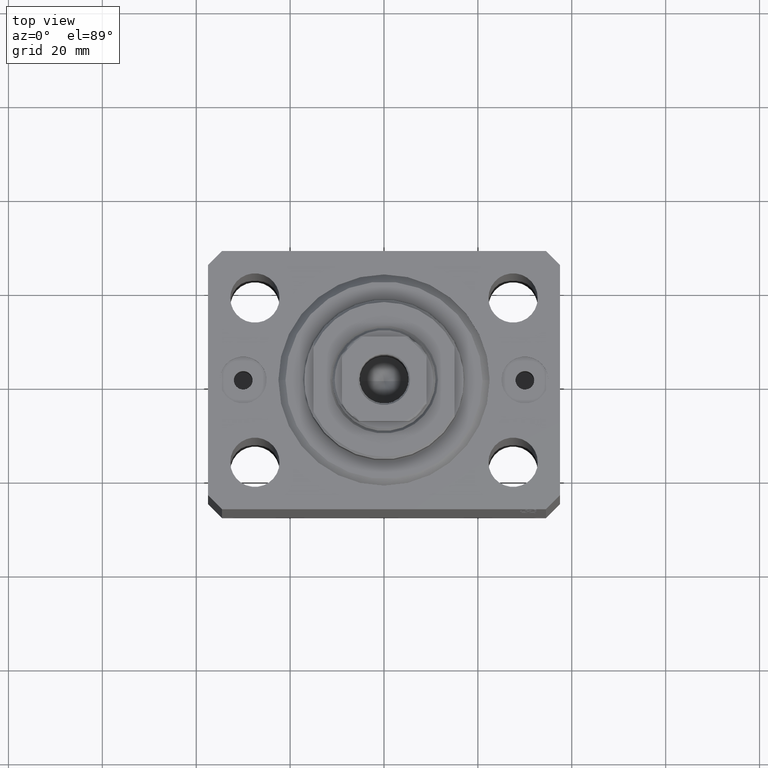
[diagram: clean part render]
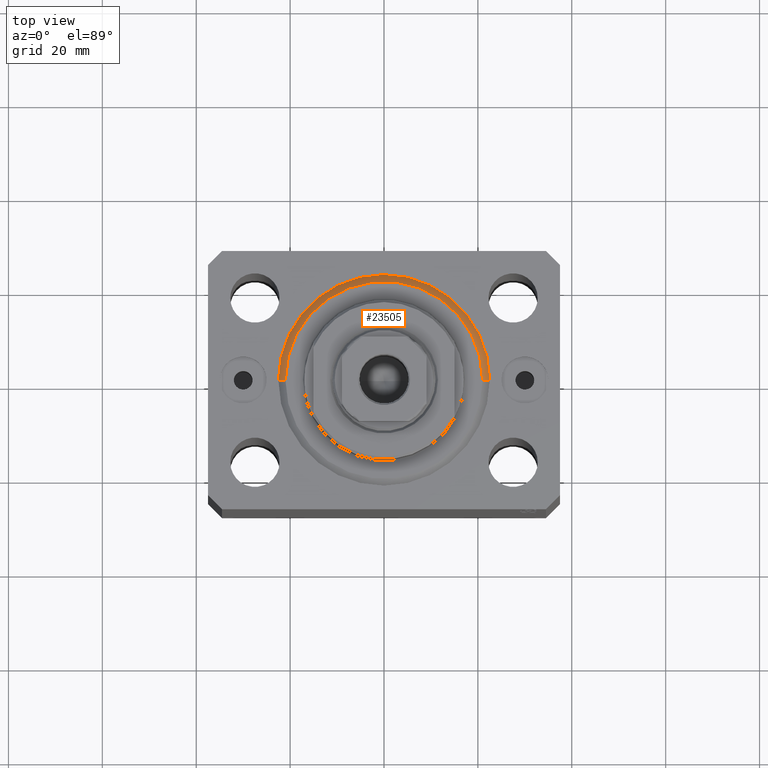
[diagram: same view with one face highlighted and labeled with its STEP entity id]
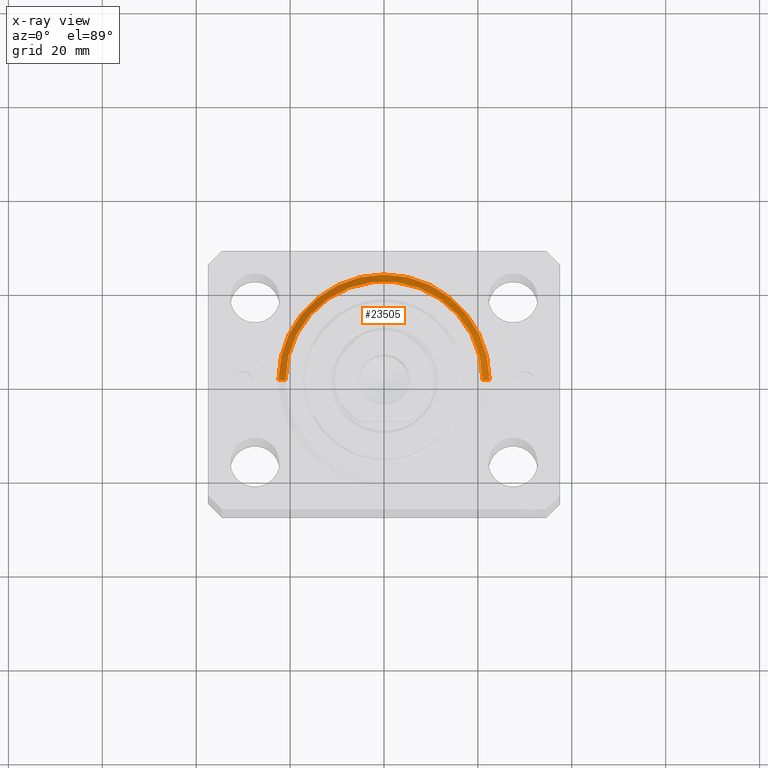
[diagram: x-ray of the same camera — body ghosted, the highlighted face saturated]
A machine part, top view. The second image highlights one B-rep face of the part: STEP entity #23505.
The next image is the same camera in x-ray: the body ghosted, the highlighted face saturated — about 0% of this face is hidden behind the body in this view.
In plain terms, the highlighted conical surface has half-angle 45 deg.
Its self-contained STEP definition (entity closure, byte-faithful):
#425 = CARTESIAN_POINT ( 'NONE',  ( -22.50000000000000355, 2.755455298081545172E-15, 1.500000000000001332 ) ) ;
#1214 = CONICAL_SURFACE ( 'NONE', #32076, 22.50000000000000355, 0.7853981633974517207 ) ;
#1326 = DIRECTION ( 'NONE',  ( 1.000000000000000000, 0.000000000000000000, 0.000000000000000000 ) ) ;
#2121 = EDGE_LOOP ( 'NONE', ( #8008, #28633, #29844, #9351 ) ) ;
#2339 = DIRECTION ( 'NONE',  ( -0.000000000000000000, -0.000000000000000000, -1.000000000000000000 ) ) ;
#3507 = VECTOR ( 'NONE', #17735, 1000.000000000000114 ) ;
#5348 = CARTESIAN_POINT ( 'NONE',  ( 0.000000000000000000, 0.000000000000000000, 1.500000000000001332 ) ) ;
#8008 = ORIENTED_EDGE ( 'NONE', *, *, #39689, .F. ) ;
#8509 = DIRECTION ( 'NONE',  ( -0.000000000000000000, -0.000000000000000000, 1.000000000000000000 ) ) ;
#8584 = VERTEX_POINT ( 'NONE', #29339 ) ;
#9351 = ORIENTED_EDGE ( 'NONE', *, *, #29347, .F. ) ;
#10325 = CARTESIAN_POINT ( 'NONE',  ( 22.50000000000000355, 0.000000000000000000, 1.500000000000001332 ) ) ;
#10483 = VERTEX_POINT ( 'NONE', #43033 ) ;
#11195 = VERTEX_POINT ( 'NONE', #37497 ) ;
#12649 = VECTOR ( 'NONE', #19413, 1000.000000000000114 ) ;
#14141 = LINE ( 'NONE', #10325, #3507 ) ;
#14824 = AXIS2_PLACEMENT_3D ( 'NONE', #32914, #2339, #18523 ) ;
#15397 = CARTESIAN_POINT ( 'NONE',  ( 0.000000000000000000, 0.000000000000000000, 1.500000000000001332 ) ) ;
#17735 = DIRECTION ( 'NONE',  ( 0.7071067811865500152, 0.000000000000000000, 0.7071067811865451302 ) ) ;
#18523 = DIRECTION ( 'NONE',  ( 1.000000000000000000, 0.000000000000000000, 0.000000000000000000 ) ) ;
#19413 = DIRECTION ( 'NONE',  ( -0.7071067811865500152, 8.659560562354963673E-17, 0.7071067811865451302 ) ) ;
#20473 = CIRCLE ( 'NONE', #34816, 22.50000000000000355 ) ;
#21767 = FACE_OUTER_BOUND ( 'NONE', #2121, .T. ) ;
#23505 = ADVANCED_FACE ( 'NONE', ( #21767 ), #1214, .T. ) ;
#28633 = ORIENTED_EDGE ( 'NONE', *, *, #38862, .T. ) ;
#29339 = CARTESIAN_POINT ( 'NONE',  ( 22.50000000000000355, 2.755455298081545172E-15, 1.500000000000001332 ) ) ;
#29347 = EDGE_CURVE ( 'NONE', #40514, #8584, #14141, .T. ) ;
#29844 = ORIENTED_EDGE ( 'NONE', *, *, #36118, .F. ) ;
#32076 = AXIS2_PLACEMENT_3D ( 'NONE', #5348, #8509, #1326 ) ;
#32914 = CARTESIAN_POINT ( 'NONE',  ( 0.000000000000000000, 0.000000000000000000, 0.000000000000000000 ) ) ;
#34816 = AXIS2_PLACEMENT_3D ( 'NONE', #15397, #40505, #37143 ) ;
#35177 = CARTESIAN_POINT ( 'NONE',  ( 20.99999999999998934, 0.000000000000000000, 0.000000000000000000 ) ) ;
#36118 = EDGE_CURVE ( 'NONE', #8584, #10483, #20473, .T. ) ;
#37143 = DIRECTION ( 'NONE',  ( 1.000000000000000000, 0.000000000000000000, 0.000000000000000000 ) ) ;
#37497 = CARTESIAN_POINT ( 'NONE',  ( -20.99999999999998934, 2.663606788145492628E-15, 0.000000000000000000 ) ) ;
#37535 = LINE ( 'NONE', #425, #12649 ) ;
#38862 = EDGE_CURVE ( 'NONE', #11195, #10483, #37535, .T. ) ;
#39210 = CIRCLE ( 'NONE', #14824, 20.99999999999998934 ) ;
#39689 = EDGE_CURVE ( 'NONE', #11195, #40514, #39210, .T. ) ;
#40505 = DIRECTION ( 'NONE',  ( -0.000000000000000000, -0.000000000000000000, 1.000000000000000000 ) ) ;
#40514 = VERTEX_POINT ( 'NONE', #35177 ) ;
#43033 = CARTESIAN_POINT ( 'NONE',  ( -22.50000000000000355, 0.000000000000000000, 1.500000000000001332 ) ) ;